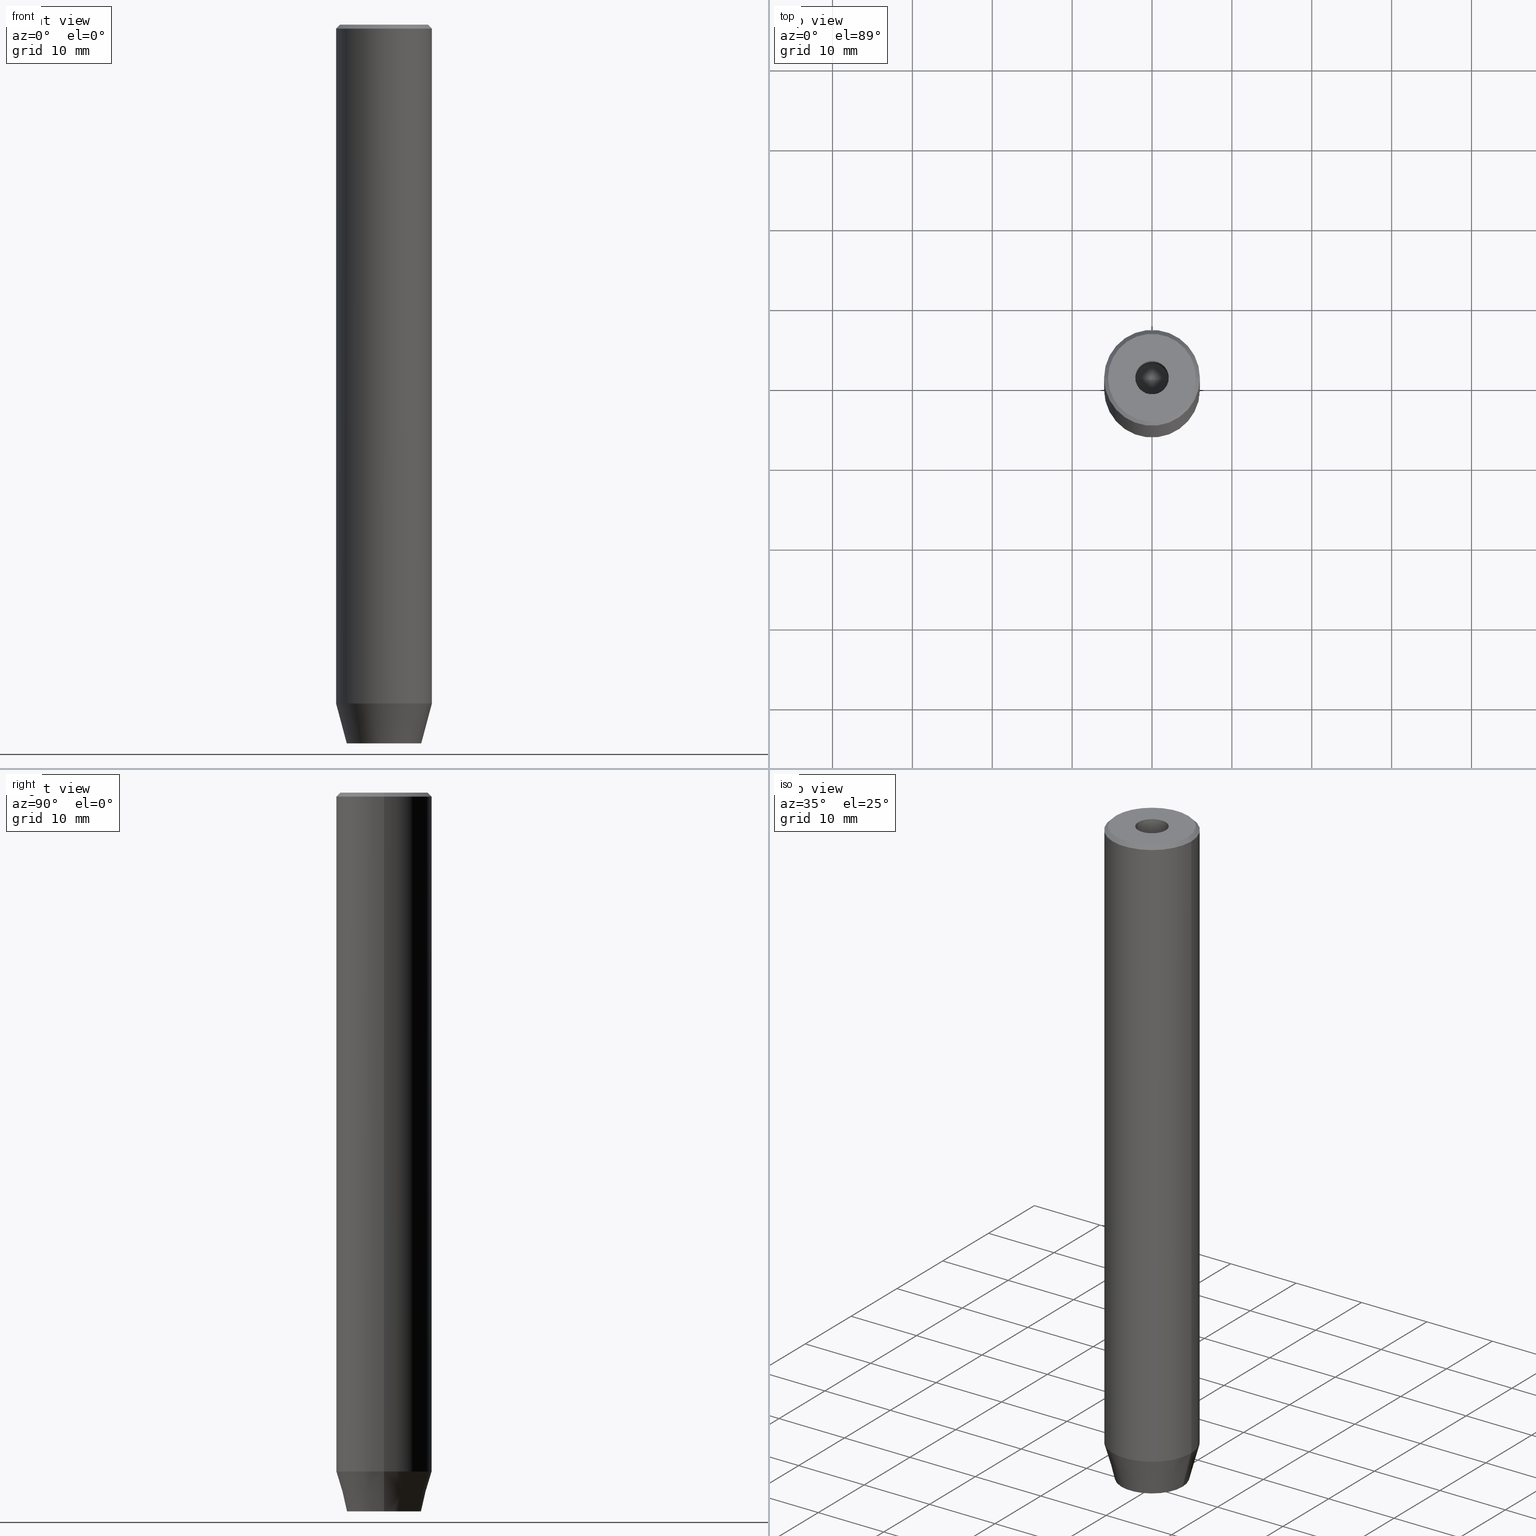
[diagram: canonical four-view strip — front | top / right | iso, engineering-drawing reading convention]
A machine part, canonical four-view strip (front | top / right | iso — engineering-drawing reading convention). The complete STEP part file that produces these views, byte-faithful:
ISO-10303-21;
HEADER;
FILE_DESCRIPTION (( 'STEP AP203' ),
    '1' );
FILE_NAME ('06da.STEP',
    '2024-01-02T21:55:54',
    ( '' ),
    ( '' ),
    'SwSTEP 2.0',
    'SolidWorks 2019',
    '' );
FILE_SCHEMA (( 'CONFIG_CONTROL_DESIGN' ));
ENDSEC;

DATA;
#1 = CYLINDRICAL_SURFACE ( 'NONE', #310, 6.000000000000000000 ) ;
#2 = ORIENTED_EDGE ( 'NONE', *, *, #356, .F. ) ;
#3 = DIRECTION ( 'NONE',  ( -1.000000000000000000, 0.000000000000000000, 0.000000000000000000 ) ) ;
#4 = CONICAL_SURFACE ( 'NONE', #380, 6.000000000000000000, 0.2617993877991502405 ) ;
#5 = DIRECTION ( 'NONE',  ( 0.8571673007021113344, 0.000000000000000000, 0.5150380749100558209 ) ) ;
#6 = CARTESIAN_POINT ( 'NONE',  ( 1.250000000000000222, 2.165063509461096825, -90.00000000000000000 ) ) ;
#7 = DIRECTION ( 'NONE',  ( 1.000000000000000000, 0.000000000000000000, 0.000000000000000000 ) ) ;
#8 = FACE_OUTER_BOUND ( 'NONE', #88, .T. ) ;
#9 = ORIENTED_EDGE ( 'NONE', *, *, #433, .F. ) ;
#10 = ADVANCED_FACE ( 'NONE', ( #306 ), #81, .T. ) ;
#11 = APPROVAL_ROLE ( '' ) ;
#12 = LINE ( 'NONE', #268, #455 ) ;
#13 = AXIS2_PLACEMENT_3D ( 'NONE', #296, #388, #540 ) ;
#14 = CIRCLE ( 'NONE', #113, 2.099999999999996980 ) ;
#15 = COORDINATED_UNIVERSAL_TIME_OFFSET ( 1, 0, .AHEAD. ) ;
#16 = DIRECTION ( 'NONE',  ( -1.000000000000000000, 0.000000000000000000, 0.000000000000000000 ) ) ;
#17 = EDGE_LOOP ( 'NONE', ( #333, #28, #207, #290 ) ) ;
#18 = PERSON_AND_ORGANIZATION ( #91, #48 ) ;
#19 = ADVANCED_FACE ( 'NONE', ( #175 ), #226, .T. ) ;
#20 = CARTESIAN_POINT ( 'NONE',  ( 0.000000000000000000, 0.000000000000000000, -87.20000000000000284 ) ) ;
#21 = LINE ( 'NONE', #237, #112 ) ;
#22 = AXIS2_PLACEMENT_3D ( 'NONE', #243, #23, #200 ) ;
#23 = DIRECTION ( 'NONE',  ( -0.000000000000000000, -0.000000000000000000, 1.000000000000000000 ) ) ;
#24 = ORIENTED_EDGE ( 'NONE', *, *, #75, .T. ) ;
#25 = CARTESIAN_POINT ( 'NONE',  ( 0.000000000000000000, 0.000000000000000000, -1.990051048614449116E-16 ) ) ;
#26 = EDGE_CURVE ( 'NONE', #430, #520, #308, .T. ) ;
#27 = CARTESIAN_POINT ( 'NONE',  ( -2.099999999999998757, 2.571758278209439985E-16, -1.990051048614449116E-16 ) ) ;
#28 = ORIENTED_EDGE ( 'NONE', *, *, #337, .F. ) ;
#29 = DATE_TIME_ROLE ( 'creation_date' ) ;
#30 = CONICAL_SURFACE ( 'NONE', #245, 5.500000000000004441, 0.7853981633974552734 ) ;
#31 = CARTESIAN_POINT ( 'NONE',  ( -1.250000000000000444, 2.165063509461097269, -90.00000000000000000 ) ) ;
#32 = EDGE_LOOP ( 'NONE', ( #531, #254, #239, #400 ) ) ;
#33 = DIRECTION ( 'NONE',  ( 0.5000000000000000000, -0.8660254037844387076, 0.000000000000000000 ) ) ;
#34 = CC_DESIGN_PERSON_AND_ORGANIZATION_ASSIGNMENT ( #326, #240, ( #483 ) ) ;
#35 = VERTEX_POINT ( 'NONE', #184 ) ;
#36 = DIRECTION ( 'NONE',  ( -0.000000000000000000, -0.000000000000000000, 1.000000000000000000 ) ) ;
#37 = VERTEX_POINT ( 'NONE', #140 ) ;
#38 = ORIENTED_EDGE ( 'NONE', *, *, #215, .F. ) ;
#39 = EDGE_LOOP ( 'NONE', ( #465, #369, #2, #528 ) ) ;
#40 = ADVANCED_FACE ( 'NONE', ( #186 ), #1, .T. ) ;
#41 = CARTESIAN_POINT ( 'NONE',  ( 0.000000000000000000, 0.000000000000000000, -15.00000000000000000 ) ) ;
#42 = CARTESIAN_POINT ( 'NONE',  ( -1.084202172485504434E-16, 2.886751345948129543, -87.20000000000000284 ) ) ;
#43 = ORIENTED_EDGE ( 'NONE', *, *, #287, .T. ) ;
#44 = DIRECTION ( 'NONE',  ( 1.000000000000000000, 0.000000000000000000, 0.000000000000000000 ) ) ;
#45 = DIRECTION ( 'NONE',  ( -0.8660254037844385966, 0.5000000000000001110, 0.000000000000000000 ) ) ;
#46 = AXIS2_PLACEMENT_3D ( 'NONE', #176, #453, #233 ) ;
#47 = ORIENTED_EDGE ( 'NONE', *, *, #414, .T. ) ;
#48 = ORGANIZATION ( 'NEUR�EN�', 'NEUR�EN�', '' ) ;
#49 = LINE ( 'NONE', #544, #371 ) ;
#50 = PRODUCT_DEFINITION ( 'NEZN�M�', '', #189, #402 ) ;
#51 = ORIENTED_EDGE ( 'NONE', *, *, #215, .T. ) ;
#52 = DIRECTION ( 'NONE',  ( 0.8660254037844385966, 0.5000000000000001110, 0.000000000000000000 ) ) ;
#53 = PERSON_AND_ORGANIZATION ( #91, #48 ) ;
#54 = DIRECTION ( 'NONE',  ( 1.000000000000000000, 0.000000000000000000, 0.000000000000000000 ) ) ;
#55 = ORIENTED_EDGE ( 'NONE', *, *, #558, .F. ) ;
#56 = AXIS2_PLACEMENT_3D ( 'NONE', #413, #424, #100 ) ;
#57 = LOCAL_TIME ( 22, 55, 54.00000000000000000, #15 ) ;
#58 = EDGE_CURVE ( 'NONE', #390, #61, #49, .T. ) ;
#59 = MECHANICAL_CONTEXT ( 'NONE', #201, 'mechanical' ) ;
#60 = LINE ( 'NONE', #564, #435 ) ;
#61 = VERTEX_POINT ( 'NONE', #368 ) ;
#62 = CARTESIAN_POINT ( 'NONE',  ( -1.084202172485504434E-16, 2.886751345948129543, -87.20000000000000284 ) ) ;
#63 = ORIENTED_EDGE ( 'NONE', *, *, #374, .F. ) ;
#64 = CARTESIAN_POINT ( 'NONE',  ( -2.500000000000000444, -1.443375672974064328, -87.20000000000000284 ) ) ;
#65 = ORIENTED_EDGE ( 'NONE', *, *, #579, .T. ) ;
#66 = VECTOR ( 'NONE', #253, 1000.000000000000114 ) ;
#67 = CC_DESIGN_SECURITY_CLASSIFICATION ( #209, ( #189 ) ) ;
#68 = LINE ( 'NONE', #468, #513 ) ;
#69 = VERTEX_POINT ( 'NONE', #230 ) ;
#70 = EDGE_CURVE ( 'NONE', #439, #410, #87, .T. ) ;
#71 = DIRECTION ( 'NONE',  ( -0.000000000000000000, -0.000000000000000000, -1.000000000000000000 ) ) ;
#72 = ORIENTED_EDGE ( 'NONE', *, *, #191, .F. ) ;
#73 = DIRECTION ( 'NONE',  ( -0.000000000000000000, -0.000000000000000000, 1.000000000000000000 ) ) ;
#74 = VERTEX_POINT ( 'NONE', #365 ) ;
#75 = EDGE_CURVE ( 'NONE', #79, #299, #12, .T. ) ;
#76 = PLANE ( 'NONE',  #156 ) ;
#77 = AXIS2_PLACEMENT_3D ( 'NONE', #434, #257, #338 ) ;
#78 = CARTESIAN_POINT ( 'NONE',  ( -2.500000000000000444, -1.443375672974064328, -87.20000000000000284 ) ) ;
#79 = VERTEX_POINT ( 'NONE', #42 ) ;
#80 = FACE_OUTER_BOUND ( 'NONE', #340, .T. ) ;
#81 = CYLINDRICAL_SURFACE ( 'NONE', #555, 6.000000000000000000 ) ;
#82 = DIRECTION ( 'NONE',  ( 1.000000000000000000, 0.000000000000000000, 0.000000000000000000 ) ) ;
#83 = AXIS2_PLACEMENT_3D ( 'NONE', #314, #553, #45 ) ;
#84 = DIRECTION ( 'NONE',  ( 1.000000000000000000, 0.000000000000000000, 0.000000000000000000 ) ) ;
#85 = VERTEX_POINT ( 'NONE', #220 ) ;
#86 = FACE_OUTER_BOUND ( 'NONE', #536, .T. ) ;
#87 = LINE ( 'NONE', #364, #155 ) ;
#88 = EDGE_LOOP ( 'NONE', ( #353, #152, #352, #578 ) ) ;
#89 = CARTESIAN_POINT ( 'NONE',  ( 0.000000000000000000, 0.000000000000000000, 0.000000000000000000 ) ) ;
#90 = FACE_OUTER_BOUND ( 'NONE', #177, .T. ) ;
#91 = PERSON ( 'NEUR�EN�', 'NEUR�EN�', 'NEUR�EN�', ('NEUR�EN�'), ('NEUR�EN�'), ('NEUR�EN�') ) ;
#92 = DIRECTION ( 'NONE',  ( 0.7071067811865525687, 8.659560562354994488E-17, -0.7071067811865425767 ) ) ;
#93 = ADVANCED_FACE ( 'NONE', ( #8 ), #98, .F. ) ;
#94 = PLANE ( 'NONE',  #571 ) ;
#95 = AXIS2_PLACEMENT_3D ( 'NONE', #500, #227, #448 ) ;
#96 = VECTOR ( 'NONE', #534, 1000.000000000000000 ) ;
#97 = CARTESIAN_POINT ( 'NONE',  ( 0.000000000000000000, -2.886751345948128211, -90.00000000000000000 ) ) ;
#98 = PLANE ( 'NONE',  #95 ) ;
#99 = PERSON_AND_ORGANIZATION ( #91, #48 ) ;
#100 = DIRECTION ( 'NONE',  ( 1.000000000000000000, 0.000000000000000000, 0.000000000000000000 ) ) ;
#101 = CARTESIAN_POINT ( 'NONE',  ( -3.982994051648894933E-15, 0.000000000000000000, -16.26180729995787644 ) ) ;
#102 = EDGE_LOOP ( 'NONE', ( #172, #530, #486, #258 ) ) ;
#103 = CIRCLE ( 'NONE', #216, 6.000000000000000000 ) ;
#104 = APPROVAL_PERSON_ORGANIZATION ( #346, #151, #120 ) ;
#105 = DIRECTION ( 'NONE',  ( 0.000000000000000000, -1.000000000000000000, 0.000000000000000000 ) ) ;
#106 = DIRECTION ( 'NONE',  ( 0.000000000000000000, 0.000000000000000000, -1.000000000000000000 ) ) ;
#107 = EDGE_LOOP ( 'NONE', ( #378, #63, #51, #110 ) ) ;
#108 = ADVANCED_FACE ( 'NONE', ( #132 ), #450, .F. ) ;
#109 = DIRECTION ( 'NONE',  ( -0.7071067811865525687, 0.000000000000000000, -0.7071067811865425767 ) ) ;
#110 = ORIENTED_EDGE ( 'NONE', *, *, #385, .F. ) ;
#111 = VECTOR ( 'NONE', #73, 1000.000000000000000 ) ;
#112 = VECTOR ( 'NONE', #194, 1000.000000000000000 ) ;
#113 = AXIS2_PLACEMENT_3D ( 'NONE', #41, #229, #363 ) ;
#114 = LINE ( 'NONE', #438, #583 ) ;
#115 = DIRECTION ( 'NONE',  ( -0.000000000000000000, -0.000000000000000000, 1.000000000000000000 ) ) ;
#116 = DIRECTION ( 'NONE',  ( 1.000000000000000000, 0.000000000000000000, 0.000000000000000000 ) ) ;
#117 = ORIENTED_EDGE ( 'NONE', *, *, #280, .F. ) ;
#118 = ORIENTED_EDGE ( 'NONE', *, *, #401, .T. ) ;
#119 = ADVANCED_FACE ( 'NONE', ( #359 ), #137, .F. ) ;
#120 = APPROVAL_ROLE ( '' ) ;
#121 = LINE ( 'NONE', #128, #96 ) ;
#122 = ORIENTED_EDGE ( 'NONE', *, *, #269, .T. ) ;
#123 = AXIS2_PLACEMENT_3D ( 'NONE', #25, #150, #519 ) ;
#124 = DIRECTION ( 'NONE',  ( -0.8660254037844387076, 0.4999999999999998890, 0.000000000000000000 ) ) ;
#125 = CIRCLE ( 'NONE', #77, 4.660254037844381081 ) ;
#126 = ORIENTED_EDGE ( 'NONE', *, *, #197, .T. ) ;
#127 = ORIENTED_EDGE ( 'NONE', *, *, #414, .F. ) ;
#128 = CARTESIAN_POINT ( 'NONE',  ( 0.000000000000000000, -2.886751345948128211, -87.20000000000000284 ) ) ;
#129 = ORIENTED_EDGE ( 'NONE', *, *, #173, .F. ) ;
#130 = DIRECTION ( 'NONE',  ( -0.000000000000000000, -0.000000000000000000, 1.000000000000000000 ) ) ;
#131 = EDGE_CURVE ( 'NONE', #520, #69, #551, .T. ) ;
#132 = FACE_OUTER_BOUND ( 'NONE', #39, .T. ) ;
#133 = AXIS2_PLACEMENT_3D ( 'NONE', #375, #157, #54 ) ;
#134 = DIRECTION ( 'NONE',  ( 0.8660254037844385966, -0.5000000000000001110, 0.000000000000000000 ) ) ;
#135 = ORIENTED_EDGE ( 'NONE', *, *, #309, .T. ) ;
#136 = FACE_OUTER_BOUND ( 'NONE', #543, .T. ) ;
#137 = PLANE ( 'NONE',  #83 ) ;
#138 = ADVANCED_FACE ( 'NONE', ( #90 ), #4, .T. ) ;
#139 = CARTESIAN_POINT ( 'NONE',  ( 0.000000000000000000, 0.000000000000000000, -15.00000000000000000 ) ) ;
#140 = CARTESIAN_POINT ( 'NONE',  ( 2.099999999999996980, 0.000000000000000000, -15.00000000000000000 ) ) ;
#141 = UNCERTAINTY_MEASURE_WITH_UNIT (LENGTH_MEASURE( 1.000000000000000082E-05 ), #222, 'distance_accuracy_value', 'NONE');
#142 = CARTESIAN_POINT ( 'NONE',  ( 0.000000000000000000, 0.000000000000000000, 0.000000000000000000 ) ) ;
#143 = DIRECTION ( 'NONE',  ( -0.000000000000000000, 0.000000000000000000, -1.000000000000000000 ) ) ;
#144 = AXIS2_PLACEMENT_3D ( 'NONE', #357, #115, #181 ) ;
#145 = ORIENTED_EDGE ( 'NONE', *, *, #452, .F. ) ;
#146 = PERSON_AND_ORGANIZATION ( #91, #48 ) ;
#147 = ADVANCED_FACE ( 'NONE', ( #503 ), #94, .F. ) ;
#148 = CARTESIAN_POINT ( 'NONE',  ( -6.000000000000000000, 7.347880794884119736E-16, -84.99999999999998579 ) ) ;
#149 = DATE_AND_TIME ( #412, #246 ) ;
#150 = DIRECTION ( 'NONE',  ( -0.000000000000000000, -0.000000000000000000, 1.000000000000000000 ) ) ;
#151 = APPROVAL ( #376, 'NEUR�EN�' ) ;
#152 = ORIENTED_EDGE ( 'NONE', *, *, #223, .F. ) ;
#153 = COORDINATED_UNIVERSAL_TIME_OFFSET ( 1, 0, .AHEAD. ) ;
#154 = CARTESIAN_POINT ( 'NONE',  ( 2.500000000000000000, 1.443375672974064328, -87.20000000000000284 ) ) ;
#155 = VECTOR ( 'NONE', #549, 1000.000000000000000 ) ;
#156 = AXIS2_PLACEMENT_3D ( 'NONE', #305, #33, #213 ) ;
#157 = DIRECTION ( 'NONE',  ( -0.000000000000000000, -0.000000000000000000, 1.000000000000000000 ) ) ;
#158 = EDGE_CURVE ( 'NONE', #325, #79, #279, .T. ) ;
#159 = LINE ( 'NONE', #148, #425 ) ;
#160 = DIRECTION ( 'NONE',  ( -0.000000000000000000, -0.000000000000000000, -1.000000000000000000 ) ) ;
#161 = CIRCLE ( 'NONE', #198, 4.660254037844381081 ) ;
#162 = VECTOR ( 'NONE', #92, 999.9999999999998863 ) ;
#163 = CARTESIAN_POINT ( 'NONE',  ( 1.249999999999999778, -2.165063509461096380, -90.00000000000000000 ) ) ;
#164 = EDGE_CURVE ( 'NONE', #562, #278, #169, .T. ) ;
#165 = DIRECTION ( 'NONE',  ( 1.000000000000000000, 0.000000000000000000, 0.000000000000000000 ) ) ;
#166 = DIRECTION ( 'NONE',  ( 1.000000000000000000, 0.000000000000000000, 0.000000000000000000 ) ) ;
#167 = ORIENTED_EDGE ( 'NONE', *, *, #367, .F. ) ;
#168 = EDGE_LOOP ( 'NONE', ( #517, #135, #317, #395 ) ) ;
#169 = CIRCLE ( 'NONE', #56, 5.500000000000004441 ) ;
#170 = FACE_OUTER_BOUND ( 'NONE', #523, .T. ) ;
#171 = ORIENTED_EDGE ( 'NONE', *, *, #318, .F. ) ;
#172 = ORIENTED_EDGE ( 'NONE', *, *, #294, .T. ) ;
#173 = EDGE_CURVE ( 'NONE', #85, #439, #159, .T. ) ;
#174 =( NAMED_UNIT ( * ) PLANE_ANGLE_UNIT ( ) SI_UNIT ( $, .RADIAN. ) );
#175 = FACE_OUTER_BOUND ( 'NONE', #251, .T. ) ;
#176 = CARTESIAN_POINT ( 'NONE',  ( -1.249999999999999556, -2.165063509461096825, -87.20000000000000284 ) ) ;
#177 = EDGE_LOOP ( 'NONE', ( #129, #47, #436, #228 ) ) ;
#178 = DIRECTION ( 'NONE',  ( 0.000000000000000000, -0.000000000000000000, 1.000000000000000000 ) ) ;
#179 = VECTOR ( 'NONE', #160, 1000.000000000000000 ) ;
#180 = LOCAL_TIME ( 22, 55, 54.00000000000000000, #563 ) ;
#181 = DIRECTION ( 'NONE',  ( 1.000000000000000000, 0.000000000000000000, 0.000000000000000000 ) ) ;
#182 = EDGE_CURVE ( 'NONE', #74, #312, #377, .T. ) ;
#183 = PLANE ( 'NONE',  #266 ) ;
#184 = CARTESIAN_POINT ( 'NONE',  ( 2.099999999999998757, 0.000000000000000000, -1.990051048614449116E-16 ) ) ;
#185 = CARTESIAN_POINT ( 'NONE',  ( 6.000000000000000000, 0.000000000000000000, -84.99999999999998579 ) ) ;
#186 = FACE_OUTER_BOUND ( 'NONE', #102, .T. ) ;
#187 = APPLICATION_PROTOCOL_DEFINITION ( 'international standard', 'config_control_design', 1994, #232 ) ;
#188 = VECTOR ( 'NONE', #559, 1000.000000000000000 ) ;
#189 = PRODUCT_DEFINITION_FORMATION_WITH_SPECIFIED_SOURCE ( 'LIBOVOLN�', '', #483, .NOT_KNOWN. ) ;
#190 = DIRECTION ( 'NONE',  ( 1.000000000000000000, 0.000000000000000000, 0.000000000000000000 ) ) ;
#191 = EDGE_CURVE ( 'NONE', #299, #520, #291, .T. ) ;
#192 = DIRECTION ( 'NONE',  ( -0.2588190451025214611, 3.169619151431774186E-17, 0.9659258262890679791 ) ) ;
#193 = ORIENTED_EDGE ( 'NONE', *, *, #491, .F. ) ;
#194 = DIRECTION ( 'NONE',  ( -0.000000000000000000, -0.000000000000000000, 1.000000000000000000 ) ) ;
#195 = ORIENTED_EDGE ( 'NONE', *, *, #408, .F. ) ;
#196 = LINE ( 'NONE', #292, #319 ) ;
#197 = EDGE_CURVE ( 'NONE', #299, #74, #68, .T. ) ;
#198 = AXIS2_PLACEMENT_3D ( 'NONE', #282, #247, #464 ) ;
#199 = VECTOR ( 'NONE', #502, 1000.000000000000000 ) ;
#200 = DIRECTION ( 'NONE',  ( 1.000000000000000000, 0.000000000000000000, 0.000000000000000000 ) ) ;
#201 = APPLICATION_CONTEXT ( 'configuration controlled 3d designs of mechanical parts and assemblies' ) ;
#202 = LINE ( 'NONE', #78, #179 ) ;
#203 = ORIENTED_EDGE ( 'NONE', *, *, #394, .F. ) ;
#204 = ADVANCED_FACE ( 'NONE', ( #241 ), #421, .F. ) ;
#205 = LINE ( 'NONE', #526, #525 ) ;
#206 = ORIENTED_EDGE ( 'NONE', *, *, #545, .T. ) ;
#207 = ORIENTED_EDGE ( 'NONE', *, *, #197, .F. ) ;
#208 = APPROVAL_DATE_TIME ( #249, #151 ) ;
#209 = SECURITY_CLASSIFICATION ( '', '', #460 ) ;
#210 = DIRECTION ( 'NONE',  ( -0.8660254037844387076, -0.5000000000000001110, 0.000000000000000000 ) ) ;
#211 = VERTEX_POINT ( 'NONE', #101 ) ;
#212 = ADVANCED_BREP_SHAPE_REPRESENTATION ( '06da', ( #354, #301 ), #556 ) ;
#213 = DIRECTION ( 'NONE',  ( 0.8660254037844385966, 0.4999999999999999445, 0.000000000000000000 ) ) ;
#214 = DIRECTION ( 'NONE',  ( -0.000000000000000000, -0.000000000000000000, 1.000000000000000000 ) ) ;
#215 = EDGE_CURVE ( 'NONE', #278, #410, #60, .T. ) ;
#216 = AXIS2_PLACEMENT_3D ( 'NONE', #350, #570, #166 ) ;
#217 = FACE_OUTER_BOUND ( 'NONE', #554, .T. ) ;
#218 = VECTOR ( 'NONE', #124, 1000.000000000000114 ) ;
#219 = DIRECTION ( 'NONE',  ( -1.000000000000000000, 0.000000000000000000, -0.000000000000000000 ) ) ;
#220 = CARTESIAN_POINT ( 'NONE',  ( -4.660254037844381081, 6.527522992771884330E-16, -90.00000000000000000 ) ) ;
#221 = ORIENTED_EDGE ( 'NONE', *, *, #235, .T. ) ;
#222 =( LENGTH_UNIT ( ) NAMED_UNIT ( * ) SI_UNIT ( .MILLI., .METRE. ) );
#223 = EDGE_CURVE ( 'NONE', #79, #430, #561, .T. ) ;
#224 = CARTESIAN_POINT ( 'NONE',  ( 2.500000000000000000, 0.000000000000000000, -90.00000000000000000 ) ) ;
#225 = CARTESIAN_POINT ( 'NONE',  ( 5.500000000000004441, 7.041719095097283838E-16, 0.000000000000000000 ) ) ;
#226 = CONICAL_SURFACE ( 'NONE', #144, 6.000000000000000000, 0.2617993877991502405 ) ;
#227 = DIRECTION ( 'NONE',  ( -0.5000000000000001110, 0.8660254037844385966, 0.000000000000000000 ) ) ;
#228 = ORIENTED_EDGE ( 'NONE', *, *, #309, .F. ) ;
#229 = DIRECTION ( 'NONE',  ( -0.000000000000000000, -0.000000000000000000, 1.000000000000000000 ) ) ;
#230 = CARTESIAN_POINT ( 'NONE',  ( 2.500000000000000000, -1.443375672974064106, -90.00000000000000000 ) ) ;
#231 = PERSON_AND_ORGANIZATION_ROLE ( 'design_supplier' ) ;
#232 = APPLICATION_CONTEXT ( 'configuration controlled 3d designs of mechanical parts and assemblies' ) ;
#233 = DIRECTION ( 'NONE',  ( 0.8660254037844387076, -0.4999999999999998890, 0.000000000000000000 ) ) ;
#234 = VERTEX_POINT ( 'NONE', #327 ) ;
#235 = EDGE_CURVE ( 'NONE', #35, #360, #389, .T. ) ;
#236 = COORDINATED_UNIVERSAL_TIME_OFFSET ( 1, 0, .AHEAD. ) ;
#237 = CARTESIAN_POINT ( 'NONE',  ( -2.099999999999997868, 2.571758278209438999E-16, 0.000000000000000000 ) ) ;
#238 = AXIS2_PLACEMENT_3D ( 'NONE', #484, #481, #165 ) ;
#239 = ORIENTED_EDGE ( 'NONE', *, *, #182, .F. ) ;
#240 = PERSON_AND_ORGANIZATION_ROLE ( 'design_owner' ) ;
#241 = FACE_OUTER_BOUND ( 'NONE', #574, .T. ) ;
#242 = DIRECTION ( 'NONE',  ( -0.000000000000000000, -0.000000000000000000, -1.000000000000000000 ) ) ;
#243 = CARTESIAN_POINT ( 'NONE',  ( 0.000000000000000000, 0.000000000000000000, -84.99999999999998579 ) ) ;
#244 = EDGE_LOOP ( 'NONE', ( #366, #24, #126, #283, #264, #206 ) ) ;
#245 = AXIS2_PLACEMENT_3D ( 'NONE', #324, #474, #16 ) ;
#246 = LOCAL_TIME ( 22, 55, 54.00000000000000000, #153 ) ;
#247 = DIRECTION ( 'NONE',  ( -0.000000000000000000, -0.000000000000000000, 1.000000000000000000 ) ) ;
#248 = ADVANCED_FACE ( 'NONE', ( #511 ), #30, .T. ) ;
#249 = DATE_AND_TIME ( #510, #57 ) ;
#250 = LINE ( 'NONE', #490, #66 ) ;
#251 = EDGE_LOOP ( 'NONE', ( #122, #442, #469, #171 ) ) ;
#252 = CALENDAR_DATE ( 2024, 2, 1 ) ;
#253 = DIRECTION ( 'NONE',  ( -0.8660254037844387076, 0.4999999999999998890, 0.000000000000000000 ) ) ;
#254 = ORIENTED_EDGE ( 'NONE', *, *, #472, .F. ) ;
#255 = VECTOR ( 'NONE', #210, 999.9999999999998863 ) ;
#256 = LOCAL_TIME ( 22, 55, 54.00000000000000000, #575 ) ;
#257 = DIRECTION ( 'NONE',  ( -0.000000000000000000, -0.000000000000000000, 1.000000000000000000 ) ) ;
#258 = ORIENTED_EDGE ( 'NONE', *, *, #349, .F. ) ;
#259 = DIRECTION ( 'NONE',  ( 0.2588190451025214611, 0.000000000000000000, 0.9659258262890679791 ) ) ;
#260 = ADVANCED_FACE ( 'NONE', ( #285 ), #508, .T. ) ;
#261 = DIRECTION ( 'NONE',  ( 1.000000000000000000, 0.000000000000000000, 0.000000000000000000 ) ) ;
#262 = LINE ( 'NONE', #440, #111 ) ;
#263 = EDGE_LOOP ( 'NONE', ( #345, #203 ) ) ;
#264 = ORIENTED_EDGE ( 'NONE', *, *, #356, .T. ) ;
#265 = AXIS2_PLACEMENT_3D ( 'NONE', #572, #214, #576 ) ;
#266 = AXIS2_PLACEMENT_3D ( 'NONE', #399, #451, #219 ) ;
#267 = DIRECTION ( 'NONE',  ( 1.000000000000000000, 0.000000000000000000, 0.000000000000000000 ) ) ;
#268 = CARTESIAN_POINT ( 'NONE',  ( 1.250000000000000222, 2.165063509461096825, -87.20000000000000284 ) ) ;
#269 = EDGE_CURVE ( 'NONE', #392, #85, #161, .T. ) ;
#270 = CARTESIAN_POINT ( 'NONE',  ( 2.500000000000000000, 1.443375672974064328, -90.00000000000000000 ) ) ;
#271 = LINE ( 'NONE', #315, #362 ) ;
#272 = DIRECTION ( 'NONE',  ( -0.000000000000000000, -0.000000000000000000, 1.000000000000000000 ) ) ;
#273 = ORIENTED_EDGE ( 'NONE', *, *, #374, .T. ) ;
#274 = FACE_BOUND ( 'NONE', #409, .T. ) ;
#275 = VECTOR ( 'NONE', #259, 1000.000000000000114 ) ;
#276 = CIRCLE ( 'NONE', #487, 2.099999999999996980 ) ;
#277 = CARTESIAN_POINT ( 'NONE',  ( 2.500000000000000000, 0.000000000000000000, -87.20000000000000284 ) ) ;
#278 = VERTEX_POINT ( 'NONE', #423 ) ;
#279 = LINE ( 'NONE', #461, #286 ) ;
#280 = EDGE_CURVE ( 'NONE', #211, #234, #196, .T. ) ;
#281 = PERSON_AND_ORGANIZATION_ROLE ( 'creator' ) ;
#282 = CARTESIAN_POINT ( 'NONE',  ( 0.000000000000000000, 0.000000000000000000, -90.00000000000000000 ) ) ;
#283 = ORIENTED_EDGE ( 'NONE', *, *, #182, .T. ) ;
#284 = APPROVAL_STATUS ( 'not_yet_approved' ) ;
#285 = FACE_OUTER_BOUND ( 'NONE', #244, .T. ) ;
#286 = VECTOR ( 'NONE', #52, 1000.000000000000000 ) ;
#287 = EDGE_CURVE ( 'NONE', #234, #360, #21, .T. ) ;
#288 = PERSON_AND_ORGANIZATION ( #91, #48 ) ;
#289 = DIRECTION ( 'NONE',  ( -0.8571673007021113344, 1.049727191138617463E-16, 0.5150380749100558209 ) ) ;
#290 = ORIENTED_EDGE ( 'NONE', *, *, #191, .T. ) ;
#291 = LINE ( 'NONE', #154, #188 ) ;
#292 = CARTESIAN_POINT ( 'NONE',  ( -2.099999999999996980, 2.571758278209438013E-16, -15.00000000000000000 ) ) ;
#293 = DIRECTION ( 'NONE',  ( -0.000000000000000000, -0.000000000000000000, -1.000000000000000000 ) ) ;
#294 = EDGE_CURVE ( 'NONE', #550, #439, #581, .T. ) ;
#295 = APPROVAL_ROLE ( '' ) ;
#296 = CARTESIAN_POINT ( 'NONE',  ( 0.000000000000000000, 0.000000000000000000, -0.4999999999999891753 ) ) ;
#297 = ORIENTED_EDGE ( 'NONE', *, *, #164, .T. ) ;
#298 = FACE_OUTER_BOUND ( 'NONE', #32, .T. ) ;
#299 = VERTEX_POINT ( 'NONE', #379 ) ;
#300 = VECTOR ( 'NONE', #311, 1000.000000000000000 ) ;
#301 = AXIS2_PLACEMENT_3D ( 'NONE', #142, #506, #190 ) ;
#302 = ADVANCED_FACE ( 'NONE', ( #566 ), #415, .T. ) ;
#303 = CARTESIAN_POINT ( 'NONE',  ( 4.660254037844381081, 0.000000000000000000, -90.00000000000000000 ) ) ;
#304 = VERTEX_POINT ( 'NONE', #64 ) ;
#305 = CARTESIAN_POINT ( 'NONE',  ( 1.249999999999999778, -2.165063509461096380, -87.20000000000000284 ) ) ;
#306 = FACE_OUTER_BOUND ( 'NONE', #168, .T. ) ;
#307 = DIRECTION ( 'NONE',  ( -0.000000000000000000, -0.000000000000000000, 1.000000000000000000 ) ) ;
#308 = LINE ( 'NONE', #6, #546 ) ;
#309 = EDGE_CURVE ( 'NONE', #439, #550, #535, .T. ) ;
#310 = AXIS2_PLACEMENT_3D ( 'NONE', #542, #321, #84 ) ;
#311 = DIRECTION ( 'NONE',  ( 0.000000000000000000, -1.000000000000000000, 0.000000000000000000 ) ) ;
#312 = VERTEX_POINT ( 'NONE', #383 ) ;
#313 = CARTESIAN_POINT ( 'NONE',  ( 0.000000000000000000, 0.000000000000000000, -15.00000000000000000 ) ) ;
#314 = CARTESIAN_POINT ( 'NONE',  ( 1.250000000000000222, 2.165063509461096825, -87.20000000000000284 ) ) ;
#315 = CARTESIAN_POINT ( 'NONE',  ( 2.099999999999996980, 0.000000000000000000, -15.00000000000000000 ) ) ;
#316 = DIRECTION ( 'NONE',  ( 1.000000000000000000, 0.000000000000000000, 0.000000000000000000 ) ) ;
#317 = ORIENTED_EDGE ( 'NONE', *, *, #349, .T. ) ;
#318 = EDGE_CURVE ( 'NONE', #392, #550, #336, .T. ) ;
#319 = VECTOR ( 'NONE', #289, 1000.000000000000000 ) ;
#320 = CC_DESIGN_APPROVAL ( #428, ( #50 ) ) ;
#321 = DIRECTION ( 'NONE',  ( -0.000000000000000000, -0.000000000000000000, 1.000000000000000000 ) ) ;
#322 = EDGE_LOOP ( 'NONE', ( #459, #501, #167, #38 ) ) ;
#323 = PERSON_AND_ORGANIZATION ( #91, #48 ) ;
#324 = CARTESIAN_POINT ( 'NONE',  ( 0.000000000000000000, 0.000000000000000000, 0.000000000000000000 ) ) ;
#325 = VERTEX_POINT ( 'NONE', #432 ) ;
#326 = PERSON_AND_ORGANIZATION ( #91, #48 ) ;
#327 = CARTESIAN_POINT ( 'NONE',  ( -2.099999999999996980, 2.571758278209438013E-16, -15.00000000000000000 ) ) ;
#328 = VERTEX_POINT ( 'NONE', #478 ) ;
#329 = EDGE_CURVE ( 'NONE', #37, #35, #205, .T. ) ;
#330 = DATE_AND_TIME ( #463, #256 ) ;
#331 = DIRECTION ( 'NONE',  ( -1.000000000000000000, 0.000000000000000000, -0.000000000000000000 ) ) ;
#332 = AXIS2_PLACEMENT_3D ( 'NONE', #417, #516, #470 ) ;
#333 = ORIENTED_EDGE ( 'NONE', *, *, #131, .T. ) ;
#334 = CC_DESIGN_PERSON_AND_ORGANIZATION_ASSIGNMENT ( #288, #281, ( #50 ) ) ;
#335 = CARTESIAN_POINT ( 'NONE',  ( 0.000000000000000000, 0.000000000000000000, 0.000000000000000000 ) ) ;
#336 = LINE ( 'NONE', #522, #275 ) ;
#337 = EDGE_CURVE ( 'NONE', #74, #69, #488, .T. ) ;
#338 = DIRECTION ( 'NONE',  ( 1.000000000000000000, 0.000000000000000000, 0.000000000000000000 ) ) ;
#339 = CIRCLE ( 'NONE', #238, 2.099999999999998757 ) ;
#340 = EDGE_LOOP ( 'NONE', ( #482, #9, #476, #118 ) ) ;
#341 = AXIS2_PLACEMENT_3D ( 'NONE', #139, #403, #44 ) ;
#342 = DATE_AND_TIME ( #416, #180 ) ;
#343 = CARTESIAN_POINT ( 'NONE',  ( -6.000000000000000000, 7.347880794884119736E-16, -84.99999999999998579 ) ) ;
#344 = ORIENTED_EDGE ( 'NONE', *, *, #539, .T. ) ;
#345 = ORIENTED_EDGE ( 'NONE', *, *, #235, .F. ) ;
#346 = PERSON_AND_ORGANIZATION ( #91, #48 ) ;
#347 = DIRECTION ( 'NONE',  ( 0.8660254037844385966, 0.5000000000000001110, 0.000000000000000000 ) ) ;
#348 = ORIENTED_EDGE ( 'NONE', *, *, #75, .F. ) ;
#349 = EDGE_CURVE ( 'NONE', #550, #328, #262, .T. ) ;
#350 = CARTESIAN_POINT ( 'NONE',  ( 0.000000000000000000, 0.000000000000000000, -0.4999999999999891753 ) ) ;
#351 = LINE ( 'NONE', #31, #446 ) ;
#352 = ORIENTED_EDGE ( 'NONE', *, *, #158, .F. ) ;
#353 = ORIENTED_EDGE ( 'NONE', *, *, #452, .T. ) ;
#354 = MANIFOLD_SOLID_BREP ( 'Vrt�k z�vitn�ku pro M5 z�vit1', #485 ) ;
#355 =( NAMED_UNIT ( * ) SI_UNIT ( $, .STERADIAN. ) SOLID_ANGLE_UNIT ( ) );
#356 = EDGE_CURVE ( 'NONE', #312, #304, #250, .T. ) ;
#357 = CARTESIAN_POINT ( 'NONE',  ( 0.000000000000000000, 0.000000000000000000, -84.99999999999998579 ) ) ;
#358 = FACE_OUTER_BOUND ( 'NONE', #418, .T. ) ;
#359 = FACE_OUTER_BOUND ( 'NONE', #497, .T. ) ;
#360 = VERTEX_POINT ( 'NONE', #27 ) ;
#361 = VECTOR ( 'NONE', #71, 1000.000000000000000 ) ;
#362 = VECTOR ( 'NONE', #5, 1000.000000000000000 ) ;
#363 = DIRECTION ( 'NONE',  ( 1.000000000000000000, 0.000000000000000000, 0.000000000000000000 ) ) ;
#364 = CARTESIAN_POINT ( 'NONE',  ( -6.000000000000000000, 7.347880794884119736E-16, 0.000000000000000000 ) ) ;
#365 = CARTESIAN_POINT ( 'NONE',  ( 2.500000000000000000, -1.443375672974064106, -87.20000000000000284 ) ) ;
#366 = ORIENTED_EDGE ( 'NONE', *, *, #158, .T. ) ;
#367 = EDGE_CURVE ( 'NONE', #410, #328, #398, .T. ) ;
#368 = CARTESIAN_POINT ( 'NONE',  ( -2.500000000000000444, 1.443375672974064772, -90.00000000000000000 ) ) ;
#369 = ORIENTED_EDGE ( 'NONE', *, *, #401, .F. ) ;
#370 = PRODUCT_RELATED_PRODUCT_CATEGORY ( 'detail', '', ( #483 ) ) ;
#371 = VECTOR ( 'NONE', #404, 1000.000000000000000 ) ;
#372 = DIRECTION ( 'NONE',  ( -0.8660254037844387076, -0.5000000000000001110, 0.000000000000000000 ) ) ;
#373 = PERSON_AND_ORGANIZATION_ROLE ( 'classification_officer' ) ;
#374 = EDGE_CURVE ( 'NONE', #278, #562, #475, .T. ) ;
#375 = CARTESIAN_POINT ( 'NONE',  ( 0.000000000000000000, 0.000000000000000000, 0.000000000000000000 ) ) ;
#376 = APPROVAL_STATUS ( 'not_yet_approved' ) ;
#377 = LINE ( 'NONE', #429, #505 ) ;
#378 = ORIENTED_EDGE ( 'NONE', *, *, #565, .F. ) ;
#379 = CARTESIAN_POINT ( 'NONE',  ( 2.500000000000000000, 1.443375672974064328, -87.20000000000000284 ) ) ;
#380 = AXIS2_PLACEMENT_3D ( 'NONE', #405, #272, #316 ) ;
#381 = APPROVAL_PERSON_ORGANIZATION ( #99, #428, #11 ) ;
#382 = ORIENTED_EDGE ( 'NONE', *, *, #558, .T. ) ;
#383 = CARTESIAN_POINT ( 'NONE',  ( 0.000000000000000000, -2.886751345948128211, -87.20000000000000284 ) ) ;
#384 = ORIENTED_EDGE ( 'NONE', *, *, #26, .T. ) ;
#385 = EDGE_CURVE ( 'NONE', #328, #410, #103, .T. ) ;
#386 = DIRECTION ( 'NONE',  ( -0.000000000000000000, -0.000000000000000000, 1.000000000000000000 ) ) ;
#387 = CC_DESIGN_PERSON_AND_ORGANIZATION_ASSIGNMENT ( #53, #373, ( #209 ) ) ;
#388 = DIRECTION ( 'NONE',  ( 0.000000000000000000, 0.000000000000000000, -1.000000000000000000 ) ) ;
#389 = CIRCLE ( 'NONE', #123, 2.099999999999998757 ) ;
#390 = VERTEX_POINT ( 'NONE', #580 ) ;
#391 = AXIS2_PLACEMENT_3D ( 'NONE', #89, #178, #267 ) ;
#392 = VERTEX_POINT ( 'NONE', #303 ) ;
#393 = CARTESIAN_POINT ( 'NONE',  ( 2.500000000000000000, -1.443375672974064106, -87.20000000000000284 ) ) ;
#394 = EDGE_CURVE ( 'NONE', #360, #35, #339, .T. ) ;
#395 = ORIENTED_EDGE ( 'NONE', *, *, #385, .T. ) ;
#396 = LINE ( 'NONE', #577, #218 ) ;
#397 = CARTESIAN_POINT ( 'NONE',  ( -2.168404344971008868E-16, 2.886751345948129543, -90.00000000000000000 ) ) ;
#398 = CIRCLE ( 'NONE', #13, 6.000000000000000000 ) ;
#399 = CARTESIAN_POINT ( 'NONE',  ( 0.000000000000000000, 4.660254037844381081, -90.00000000000000000 ) ) ;
#400 = ORIENTED_EDGE ( 'NONE', *, *, #337, .T. ) ;
#401 = EDGE_CURVE ( 'NONE', #304, #390, #202, .T. ) ;
#402 = DESIGN_CONTEXT ( 'detailed design', #232, 'design' ) ;
#403 = DIRECTION ( 'NONE',  ( -0.000000000000000000, -0.000000000000000000, 1.000000000000000000 ) ) ;
#404 = DIRECTION ( 'NONE',  ( 0.000000000000000000, 1.000000000000000000, 0.000000000000000000 ) ) ;
#405 = CARTESIAN_POINT ( 'NONE',  ( 0.000000000000000000, 0.000000000000000000, -84.99999999999998579 ) ) ;
#406 = CONICAL_SURFACE ( 'NONE', #426, 2.099999999999996980, 1.029744258676652535 ) ;
#407 = CARTESIAN_POINT ( 'NONE',  ( 5.500000000000004441, 6.735557395310447940E-16, 0.000000000000000000 ) ) ;
#408 = EDGE_CURVE ( 'NONE', #69, #582, #533, .T. ) ;
#409 = EDGE_LOOP ( 'NONE', ( #145, #479, #193, #195, #471, #507 ) ) ;
#410 = VERTEX_POINT ( 'NONE', #441 ) ;
#411 = CC_DESIGN_DATE_AND_TIME_ASSIGNMENT ( #342, #419, ( #209 ) ) ;
#412 = CALENDAR_DATE ( 2024, 2, 1 ) ;
#413 = CARTESIAN_POINT ( 'NONE',  ( 0.000000000000000000, 0.000000000000000000, 0.000000000000000000 ) ) ;
#414 = EDGE_CURVE ( 'NONE', #85, #392, #125, .T. ) ;
#415 = CONICAL_SURFACE ( 'NONE', #443, 5.500000000000004441, 0.7853981633974552734 ) ;
#416 = CALENDAR_DATE ( 2024, 2, 1 ) ;
#417 = CARTESIAN_POINT ( 'NONE',  ( 0.000000000000000000, 0.000000000000000000, -84.99999999999998579 ) ) ;
#418 = EDGE_LOOP ( 'NONE', ( #512, #504, #454, #221 ) ) ;
#419 = DATE_TIME_ROLE ( 'classification_date' ) ;
#420 = CC_DESIGN_DATE_AND_TIME_ASSIGNMENT ( #330, #29, ( #50 ) ) ;
#421 = CYLINDRICAL_SURFACE ( 'NONE', #133, 2.099999999999997868 ) ;
#422 = ORIENTED_EDGE ( 'NONE', *, *, #269, .F. ) ;
#423 = CARTESIAN_POINT ( 'NONE',  ( -5.500000000000004441, 0.000000000000000000, 0.000000000000000000 ) ) ;
#424 = DIRECTION ( 'NONE',  ( -0.000000000000000000, -0.000000000000000000, 1.000000000000000000 ) ) ;
#425 = VECTOR ( 'NONE', #192, 1000.000000000000114 ) ;
#426 = AXIS2_PLACEMENT_3D ( 'NONE', #529, #386, #116 ) ;
#427 = ORIENTED_EDGE ( 'NONE', *, *, #329, .F. ) ;
#428 = APPROVAL ( #557, 'NEUR�EN�' ) ;
#429 = CARTESIAN_POINT ( 'NONE',  ( 1.249999999999999778, -2.165063509461096380, -87.20000000000000284 ) ) ;
#430 = VERTEX_POINT ( 'NONE', #397 ) ;
#431 = APPROVAL_DATE_TIME ( #149, #560 ) ;
#432 = CARTESIAN_POINT ( 'NONE',  ( -2.500000000000000444, 1.443375672974064772, -87.20000000000000284 ) ) ;
#433 = EDGE_CURVE ( 'NONE', #325, #61, #114, .T. ) ;
#434 = CARTESIAN_POINT ( 'NONE',  ( 0.000000000000000000, 0.000000000000000000, -90.00000000000000000 ) ) ;
#435 = VECTOR ( 'NONE', #109, 999.9999999999998863 ) ;
#436 = ORIENTED_EDGE ( 'NONE', *, *, #318, .T. ) ;
#437 = AXIS2_PLACEMENT_3D ( 'NONE', #586, #3, #541 ) ;
#438 = CARTESIAN_POINT ( 'NONE',  ( -2.500000000000000444, 1.443375672974064772, -87.20000000000000284 ) ) ;
#439 = VERTEX_POINT ( 'NONE', #343 ) ;
#440 = CARTESIAN_POINT ( 'NONE',  ( 6.000000000000000000, 0.000000000000000000, 0.000000000000000000 ) ) ;
#441 = CARTESIAN_POINT ( 'NONE',  ( -6.000000000000000000, 7.347880794884119736E-16, -0.4999999999999891753 ) ) ;
#442 = ORIENTED_EDGE ( 'NONE', *, *, #173, .T. ) ;
#443 = AXIS2_PLACEMENT_3D ( 'NONE', #335, #106, #473 ) ;
#444 = ADVANCED_FACE ( 'NONE', ( #170 ), #406, .F. ) ;
#445 = CONICAL_SURFACE ( 'NONE', #341, 2.099999999999996980, 1.029744258676652535 ) ;
#446 = VECTOR ( 'NONE', #347, 1000.000000000000000 ) ;
#447 = CARTESIAN_POINT ( 'NONE',  ( -2.500000000000000444, 0.000000000000000000, -87.20000000000000284 ) ) ;
#448 = DIRECTION ( 'NONE',  ( -0.8660254037844385966, -0.5000000000000001110, 0.000000000000000000 ) ) ;
#449 = LINE ( 'NONE', #447, #199 ) ;
#450 = PLANE ( 'NONE',  #46 ) ;
#451 = DIRECTION ( 'NONE',  ( 0.000000000000000000, 0.000000000000000000, -1.000000000000000000 ) ) ;
#452 = EDGE_CURVE ( 'NONE', #61, #430, #351, .T. ) ;
#453 = DIRECTION ( 'NONE',  ( -0.4999999999999998890, -0.8660254037844387076, 0.000000000000000000 ) ) ;
#454 = ORIENTED_EDGE ( 'NONE', *, *, #329, .T. ) ;
#455 = VECTOR ( 'NONE', #134, 1000.000000000000000 ) ;
#456 = LOCAL_TIME ( 22, 55, 54.00000000000000000, #236 ) ;
#457 = APPLICATION_PROTOCOL_DEFINITION ( 'international standard', 'config_control_design', 1994, #201 ) ;
#458 = DIRECTION ( 'NONE',  ( 1.000000000000000000, 0.000000000000000000, -0.000000000000000000 ) ) ;
#459 = ORIENTED_EDGE ( 'NONE', *, *, #164, .F. ) ;
#460 = SECURITY_CLASSIFICATION_LEVEL ( 'unclassified' ) ;
#461 = CARTESIAN_POINT ( 'NONE',  ( -1.250000000000000444, 2.165063509461097269, -87.20000000000000284 ) ) ;
#462 = ORIENTED_EDGE ( 'NONE', *, *, #579, .F. ) ;
#463 = CALENDAR_DATE ( 2024, 2, 1 ) ;
#464 = DIRECTION ( 'NONE',  ( 1.000000000000000000, 0.000000000000000000, 0.000000000000000000 ) ) ;
#465 = ORIENTED_EDGE ( 'NONE', *, *, #491, .T. ) ;
#466 = AXIS2_PLACEMENT_3D ( 'NONE', #20, #568, #331 ) ;
#467 = DATE_AND_TIME ( #252, #456 ) ;
#468 = CARTESIAN_POINT ( 'NONE',  ( 2.500000000000000000, 0.000000000000000000, -87.20000000000000284 ) ) ;
#469 = ORIENTED_EDGE ( 'NONE', *, *, #294, .F. ) ;
#470 = DIRECTION ( 'NONE',  ( 1.000000000000000000, 0.000000000000000000, 0.000000000000000000 ) ) ;
#471 = ORIENTED_EDGE ( 'NONE', *, *, #131, .F. ) ;
#472 = EDGE_CURVE ( 'NONE', #312, #582, #121, .T. ) ;
#473 = DIRECTION ( 'NONE',  ( -1.000000000000000000, 0.000000000000000000, 0.000000000000000000 ) ) ;
#474 = DIRECTION ( 'NONE',  ( 0.000000000000000000, 0.000000000000000000, -1.000000000000000000 ) ) ;
#475 = CIRCLE ( 'NONE', #265, 5.500000000000004441 ) ;
#476 = ORIENTED_EDGE ( 'NONE', *, *, #545, .F. ) ;
#477 = PERSON_AND_ORGANIZATION_ROLE ( 'creator' ) ;
#478 = CARTESIAN_POINT ( 'NONE',  ( 6.000000000000000000, 0.000000000000000000, -0.4999999999999891753 ) ) ;
#479 = ORIENTED_EDGE ( 'NONE', *, *, #58, .F. ) ;
#480 = ADVANCED_FACE ( 'NONE', ( #298 ), #76, .F. ) ;
#481 = DIRECTION ( 'NONE',  ( -0.000000000000000000, -0.000000000000000000, 1.000000000000000000 ) ) ;
#482 = ORIENTED_EDGE ( 'NONE', *, *, #58, .T. ) ;
#483 = PRODUCT ( '06da', '06da', '', ( #59 ) ) ;
#484 = CARTESIAN_POINT ( 'NONE',  ( 0.000000000000000000, 0.000000000000000000, -1.990051048614449116E-16 ) ) ;
#485 = CLOSED_SHELL ( 'NONE', ( #204, #527, #248, #19, #40, #587, #518, #10, #138, #302, #93, #498, #108, #480, #147, #119, #260, #444, #509 ) ) ;
#486 = ORIENTED_EDGE ( 'NONE', *, *, #367, .T. ) ;
#487 = AXIS2_PLACEMENT_3D ( 'NONE', #313, #307, #7 ) ;
#488 = LINE ( 'NONE', #393, #361 ) ;
#489 = DIRECTION ( 'NONE',  ( -0.000000000000000000, -0.000000000000000000, 1.000000000000000000 ) ) ;
#490 = CARTESIAN_POINT ( 'NONE',  ( -1.249999999999999556, -2.165063509461096825, -87.20000000000000284 ) ) ;
#491 = EDGE_CURVE ( 'NONE', #582, #390, #396, .T. ) ;
#492 = PLANE ( 'NONE',  #391 ) ;
#493 = DIRECTION ( 'NONE',  ( 0.8660254037844385966, -0.5000000000000001110, 0.000000000000000000 ) ) ;
#494 = VECTOR ( 'NONE', #242, 1000.000000000000000 ) ;
#495 = CC_DESIGN_APPROVAL ( #151, ( #189 ) ) ;
#496 = LINE ( 'NONE', #407, #162 ) ;
#497 = EDGE_LOOP ( 'NONE', ( #384, #72, #348, #547 ) ) ;
#498 = ADVANCED_FACE ( 'NONE', ( #80 ), #548, .F. ) ;
#499 = CARTESIAN_POINT ( 'NONE',  ( 0.000000000000000000, 0.000000000000000000, 0.000000000000000000 ) ) ;
#500 = CARTESIAN_POINT ( 'NONE',  ( -1.250000000000000444, 2.165063509461097269, -87.20000000000000284 ) ) ;
#501 = ORIENTED_EDGE ( 'NONE', *, *, #565, .T. ) ;
#502 = DIRECTION ( 'NONE',  ( 0.000000000000000000, 1.000000000000000000, 0.000000000000000000 ) ) ;
#503 = FACE_OUTER_BOUND ( 'NONE', #17, .T. ) ;
#504 = ORIENTED_EDGE ( 'NONE', *, *, #539, .F. ) ;
#505 = VECTOR ( 'NONE', #372, 999.9999999999998863 ) ;
#506 = DIRECTION ( 'NONE',  ( 0.000000000000000000, 0.000000000000000000, 1.000000000000000000 ) ) ;
#507 = ORIENTED_EDGE ( 'NONE', *, *, #26, .F. ) ;
#508 = PLANE ( 'NONE',  #466 ) ;
#509 = ADVANCED_FACE ( 'NONE', ( #358 ), #584, .F. ) ;
#510 = CALENDAR_DATE ( 2024, 2, 1 ) ;
#511 = FACE_OUTER_BOUND ( 'NONE', #322, .T. ) ;
#512 = ORIENTED_EDGE ( 'NONE', *, *, #287, .F. ) ;
#513 = VECTOR ( 'NONE', #105, 1000.000000000000000 ) ;
#514 = SHAPE_DEFINITION_REPRESENTATION ( #524, #212 ) ;
#515 = APPROVAL_PERSON_ORGANIZATION ( #323, #560, #295 ) ;
#516 = DIRECTION ( 'NONE',  ( -0.000000000000000000, -0.000000000000000000, 1.000000000000000000 ) ) ;
#517 = ORIENTED_EDGE ( 'NONE', *, *, #70, .F. ) ;
#518 = ADVANCED_FACE ( 'NONE', ( #552, #136 ), #492, .T. ) ;
#519 = DIRECTION ( 'NONE',  ( 1.000000000000000000, 0.000000000000000000, 0.000000000000000000 ) ) ;
#520 = VERTEX_POINT ( 'NONE', #270 ) ;
#521 = CC_DESIGN_PERSON_AND_ORGANIZATION_ASSIGNMENT ( #146, #231, ( #189 ) ) ;
#522 = CARTESIAN_POINT ( 'NONE',  ( 6.000000000000000000, 0.000000000000000000, -84.99999999999998579 ) ) ;
#523 = EDGE_LOOP ( 'NONE', ( #117, #65, #344 ) ) ;
#524 = PRODUCT_DEFINITION_SHAPE ( 'NONE', 'NONE',  #50 ) ;
#525 = VECTOR ( 'NONE', #36, 1000.000000000000000 ) ;
#526 = CARTESIAN_POINT ( 'NONE',  ( 2.099999999999997868, 0.000000000000000000, 0.000000000000000000 ) ) ;
#527 = ADVANCED_FACE ( 'NONE', ( #217 ), #445, .F. ) ;
#528 = ORIENTED_EDGE ( 'NONE', *, *, #472, .T. ) ;
#529 = CARTESIAN_POINT ( 'NONE',  ( 0.000000000000000000, 0.000000000000000000, -15.00000000000000000 ) ) ;
#530 = ORIENTED_EDGE ( 'NONE', *, *, #70, .T. ) ;
#531 = ORIENTED_EDGE ( 'NONE', *, *, #408, .T. ) ;
#532 = APPROVAL_DATE_TIME ( #467, #428 ) ;
#533 = LINE ( 'NONE', #163, #255 ) ;
#534 = DIRECTION ( 'NONE',  ( -0.000000000000000000, -0.000000000000000000, -1.000000000000000000 ) ) ;
#535 = CIRCLE ( 'NONE', #22, 6.000000000000000000 ) ;
#536 = EDGE_LOOP ( 'NONE', ( #422, #127 ) ) ;
#537 = CC_DESIGN_APPROVAL ( #560, ( #209 ) ) ;
#538 = ORIENTED_EDGE ( 'NONE', *, *, #394, .T. ) ;
#539 = EDGE_CURVE ( 'NONE', #37, #234, #276, .T. ) ;
#540 = DIRECTION ( 'NONE',  ( 1.000000000000000000, 0.000000000000000000, 0.000000000000000000 ) ) ;
#541 = DIRECTION ( 'NONE',  ( 0.000000000000000000, 0.000000000000000000, 1.000000000000000000 ) ) ;
#542 = CARTESIAN_POINT ( 'NONE',  ( 0.000000000000000000, 0.000000000000000000, 0.000000000000000000 ) ) ;
#543 = EDGE_LOOP ( 'NONE', ( #273, #297 ) ) ;
#544 = CARTESIAN_POINT ( 'NONE',  ( -2.500000000000000444, 0.000000000000000000, -90.00000000000000000 ) ) ;
#545 = EDGE_CURVE ( 'NONE', #304, #325, #449, .T. ) ;
#546 = VECTOR ( 'NONE', #493, 1000.000000000000000 ) ;
#547 = ORIENTED_EDGE ( 'NONE', *, *, #223, .T. ) ;
#548 = PLANE ( 'NONE',  #437 ) ;
#549 = DIRECTION ( 'NONE',  ( -0.000000000000000000, -0.000000000000000000, 1.000000000000000000 ) ) ;
#550 = VERTEX_POINT ( 'NONE', #185 ) ;
#551 = LINE ( 'NONE', #224, #300 ) ;
#552 = FACE_BOUND ( 'NONE', #263, .T. ) ;
#553 = DIRECTION ( 'NONE',  ( 0.5000000000000001110, 0.8660254037844385966, -0.000000000000000000 ) ) ;
#554 = EDGE_LOOP ( 'NONE', ( #462, #569, #382 ) ) ;
#555 = AXIS2_PLACEMENT_3D ( 'NONE', #585, #489, #261 ) ;
#556 =( GEOMETRIC_REPRESENTATION_CONTEXT ( 3 ) GLOBAL_UNCERTAINTY_ASSIGNED_CONTEXT ( ( #141 ) ) GLOBAL_UNIT_ASSIGNED_CONTEXT ( ( #222, #174, #355 ) ) REPRESENTATION_CONTEXT ( 'NONE', 'WORKASPACE' ) );
#557 = APPROVAL_STATUS ( 'not_yet_approved' ) ;
#558 = EDGE_CURVE ( 'NONE', #234, #37, #14, .T. ) ;
#559 = DIRECTION ( 'NONE',  ( -0.000000000000000000, -0.000000000000000000, -1.000000000000000000 ) ) ;
#560 = APPROVAL ( #284, 'NEUR�EN�' ) ;
#561 = LINE ( 'NONE', #62, #494 ) ;
#562 = VERTEX_POINT ( 'NONE', #225 ) ;
#563 = COORDINATED_UNIVERSAL_TIME_OFFSET ( 1, 0, .AHEAD. ) ;
#564 = CARTESIAN_POINT ( 'NONE',  ( -5.500000000000004441, 0.000000000000000000, 0.000000000000000000 ) ) ;
#565 = EDGE_CURVE ( 'NONE', #562, #328, #496, .T. ) ;
#566 = FACE_OUTER_BOUND ( 'NONE', #107, .T. ) ;
#567 = CC_DESIGN_PERSON_AND_ORGANIZATION_ASSIGNMENT ( #18, #477, ( #189 ) ) ;
#568 = DIRECTION ( 'NONE',  ( 0.000000000000000000, 0.000000000000000000, -1.000000000000000000 ) ) ;
#569 = ORIENTED_EDGE ( 'NONE', *, *, #280, .T. ) ;
#570 = DIRECTION ( 'NONE',  ( 0.000000000000000000, 0.000000000000000000, -1.000000000000000000 ) ) ;
#571 = AXIS2_PLACEMENT_3D ( 'NONE', #277, #458, #143 ) ;
#572 = CARTESIAN_POINT ( 'NONE',  ( 0.000000000000000000, 0.000000000000000000, 0.000000000000000000 ) ) ;
#573 = AXIS2_PLACEMENT_3D ( 'NONE', #499, #130, #82 ) ;
#574 = EDGE_LOOP ( 'NONE', ( #55, #43, #538, #427 ) ) ;
#575 = COORDINATED_UNIVERSAL_TIME_OFFSET ( 1, 0, .AHEAD. ) ;
#576 = DIRECTION ( 'NONE',  ( 1.000000000000000000, 0.000000000000000000, 0.000000000000000000 ) ) ;
#577 = CARTESIAN_POINT ( 'NONE',  ( -1.249999999999999556, -2.165063509461096825, -90.00000000000000000 ) ) ;
#578 = ORIENTED_EDGE ( 'NONE', *, *, #433, .T. ) ;
#579 = EDGE_CURVE ( 'NONE', #211, #37, #271, .T. ) ;
#580 = CARTESIAN_POINT ( 'NONE',  ( -2.500000000000000444, -1.443375672974064328, -90.00000000000000000 ) ) ;
#581 = CIRCLE ( 'NONE', #332, 6.000000000000000000 ) ;
#582 = VERTEX_POINT ( 'NONE', #97 ) ;
#583 = VECTOR ( 'NONE', #293, 1000.000000000000000 ) ;
#584 = CYLINDRICAL_SURFACE ( 'NONE', #573, 2.099999999999997868 ) ;
#585 = CARTESIAN_POINT ( 'NONE',  ( 0.000000000000000000, 0.000000000000000000, 0.000000000000000000 ) ) ;
#586 = CARTESIAN_POINT ( 'NONE',  ( -2.500000000000000444, 0.000000000000000000, -87.20000000000000284 ) ) ;
#587 = ADVANCED_FACE ( 'NONE', ( #274, #86 ), #183, .T. ) ;
ENDSEC;
END-ISO-10303-21;
